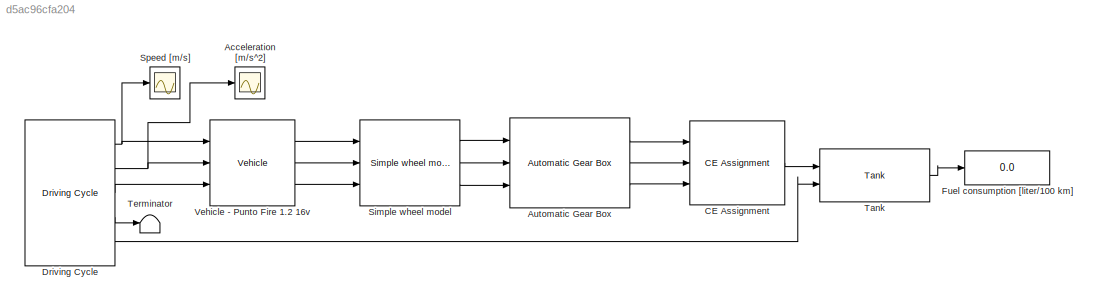
MODEL slx_d5ac96cfa204
KIND model
CONFIG AbsTol = auto
CONFIG EnableMultiTasking = off
CONFIG FixedStep = auto
CONFIG MaxStep = auto
CONFIG MinStep = auto
CONFIG RelTol = 1e-3
CONFIG SampleTimeConstraint = Unconstrained
CONFIG Solver = VariableStepAuto
CONFIG SolverName = VariableStepAuto
CONFIG StartTime = 0.0
CONFIG StopTime = 867
BLOCK [Scope] Acceleration [m//s^2]
  Floating = off
  NumInputPorts = 1
  Ports = [1]
  ScopeSpecificationString = Simulink.scopes.TimeScopeBlockCfg('CurrentConfiguration', extmgr.ConfigurationSet(extmgr.Configuration('Core','General UI',true),extmgr.Configuration('Core','Source UI',true),extmgr.Configuration('Sources','WiredSimulink',true,'DataLoggingVariableName','ScopeData1'),extmgr.Configuration('Visuals','Time Domain',true,'SerializedDisplays',{struct('MinYLimReal','-1.875','MaxYLimReal','1.875','YLabelRe...<+1362ch>
BLOCK [Reference] Automatic Gear Box  REF=qss_tb_library/Gear System/Automatic Gear Box  (lib defined in mdl_a75e96b0ff2a, mdl_aad2a3137e65)
  Ports = [3, 3]
  SourceBlock = qss_tb_library/Gear System/Automatic Gear Box
  SourceType = Automatic Gear Box
  Tag = transmission
BLOCK [Reference] CE Assignment  REF=qss_tb_library/Energy Converter/CE Assignment  (lib defined in mdl_a75e96b0ff2a, mdl_aad2a3137e65)
  Ports = [3, 1]
  SourceBlock = qss_tb_library/Energy Converter/CE Assignment
  SourceType = Combustion Engine (based on consumption map)
  Tag = combustion engine
BLOCK [Reference] Driving Cycle  REF=qss_tb_library/Driving Cycle/Driving Cycle  (lib defined in mdl_a75e96b0ff2a, mdl_aad2a3137e65)
  Ports = [0, 5]
  SourceBlock = qss_tb_library/Driving Cycle/Driving Cycle
  SourceType = Driving Cycle
  Tag = cycle
BLOCK [Display] Fuel consumption [liter//100 km] 
  Decimation = 1
  Ports = [1]
BLOCK [Reference] Simple wheel model  REF=qss_tb_library/Vehicle/Simple wheel model  (lib defined in mdl_a75e96b0ff2a, mdl_aad2a3137e65)
  Ports = [3, 3]
  SourceBlock = qss_tb_library/Vehicle/Simple wheel model
  SourceType = Simple wheel model
  Tag = simple transmission
BLOCK [Scope] Speed [m//s]
  Floating = off
  NumInputPorts = 1
  Ports = [1]
  ScopeSpecificationString = Simulink.scopes.TimeScopeBlockCfg('CurrentConfiguration', extmgr.ConfigurationSet(extmgr.Configuration('Core','General UI',true),extmgr.Configuration('Core','Source UI',true),extmgr.Configuration('Sources','WiredSimulink',true),extmgr.Configuration('Visuals','Time Domain',true,'SerializedDisplays',{struct('MinYLimReal','-1.91667','MaxYLimReal','17.25','YLabelReal','','MinYLimMag','0.00000','MaxYLi...<+1327ch>
BLOCK [Reference] Tank  REF=qss_tb_library/Energy Source/Tank  (lib defined in mdl_a75e96b0ff2a, mdl_aad2a3137e65)
  Ports = [2, 1]
  SourceBlock = qss_tb_library/Energy Source/Tank
  SourceType = Tank
  Tag = tank
BLOCK [Terminator] Terminator
BLOCK [Reference] Vehicle - Punto Fire 1.2 16v  REF=qss_tb_library/Vehicle/Vehicle  (lib defined in mdl_a75e96b0ff2a, mdl_aad2a3137e65)
  Ports = [3, 3]
  SourceBlock = qss_tb_library/Vehicle/Vehicle
  SourceType = Vehicle
  Tag = vehicle
LINE Automatic Gear Box:1 -> CE Assignment:1
LINE Automatic Gear Box:2 -> CE Assignment:2
LINE Automatic Gear Box:3 -> CE Assignment:3
LINE CE Assignment:1 -> Tank:1
NET Driving Cycle:1 -> Speed [m//s]:1, Vehicle - Punto Fire 1.2 16v:1
NET Driving Cycle:2 -> Acceleration [m//s^2]:1, Vehicle - Punto Fire 1.2 16v:2
LINE Driving Cycle:3 -> Vehicle - Punto Fire 1.2 16v:3
LINE Driving Cycle:4 -> Terminator:1
LINE Driving Cycle:5 -> Tank:2
LINE Simple wheel model:1 -> Automatic Gear Box:1
LINE Simple wheel model:2 -> Automatic Gear Box:2
LINE Simple wheel model:3 -> Automatic Gear Box:3
LINE Tank:1 -> Fuel consumption [liter//100 km] :1
LINE Vehicle - Punto Fire 1.2 16v:1 -> Simple wheel model:1
LINE Vehicle - Punto Fire 1.2 16v:2 -> Simple wheel model:2
LINE Vehicle - Punto Fire 1.2 16v:3 -> Simple wheel model:3
note: NET lines group one-source signal fan-out (src -> all destinations, sorted); 1:1 wires keep LINE
